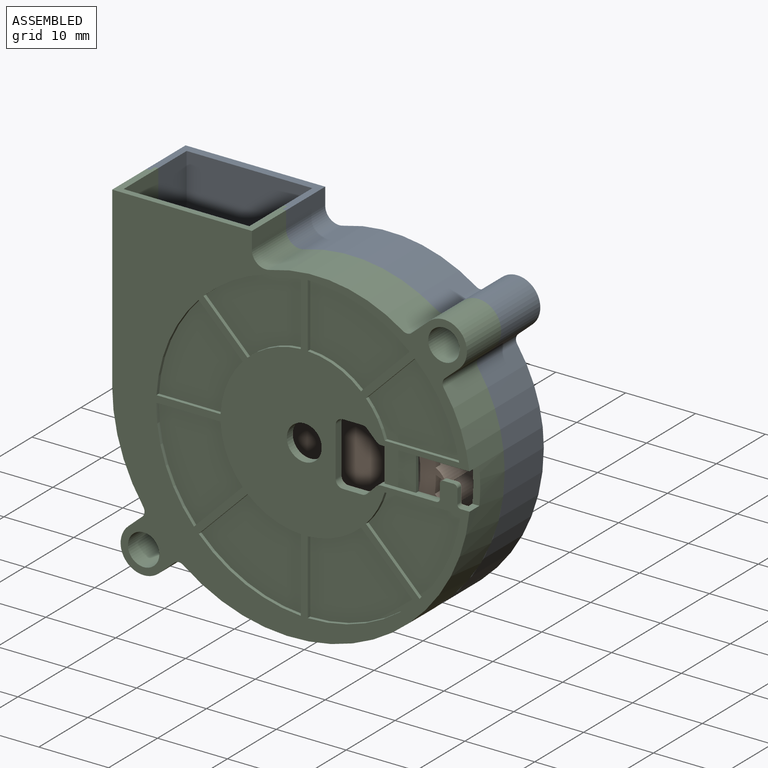
[diagram: assembled view]
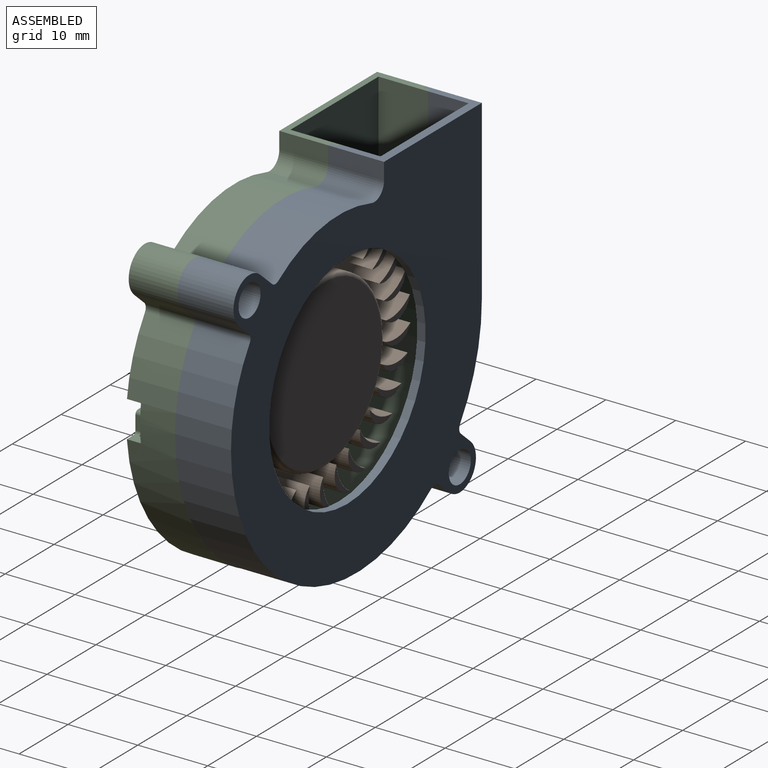
[diagram: assembled view, second angle]
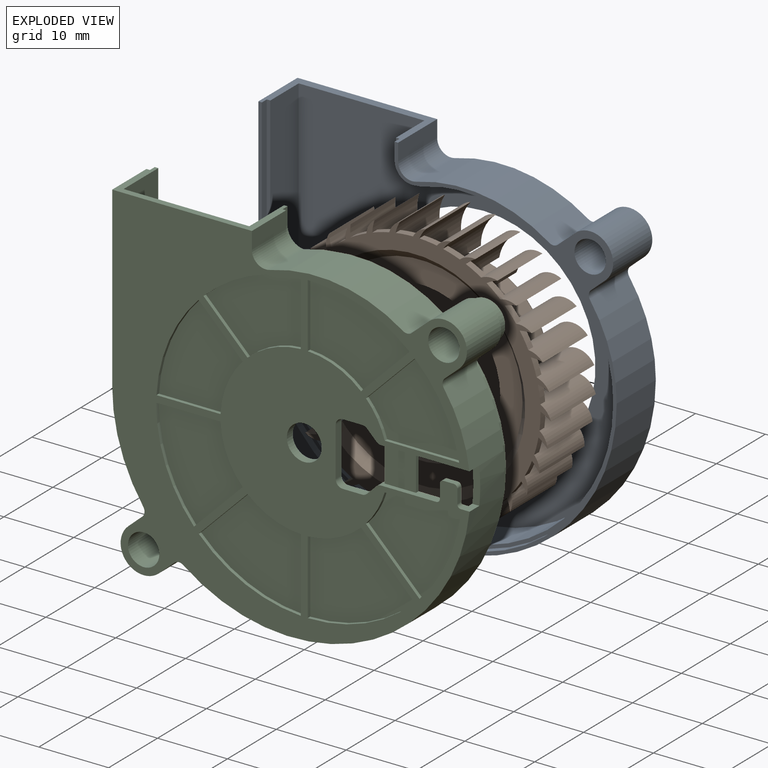
[diagram: exploded view]
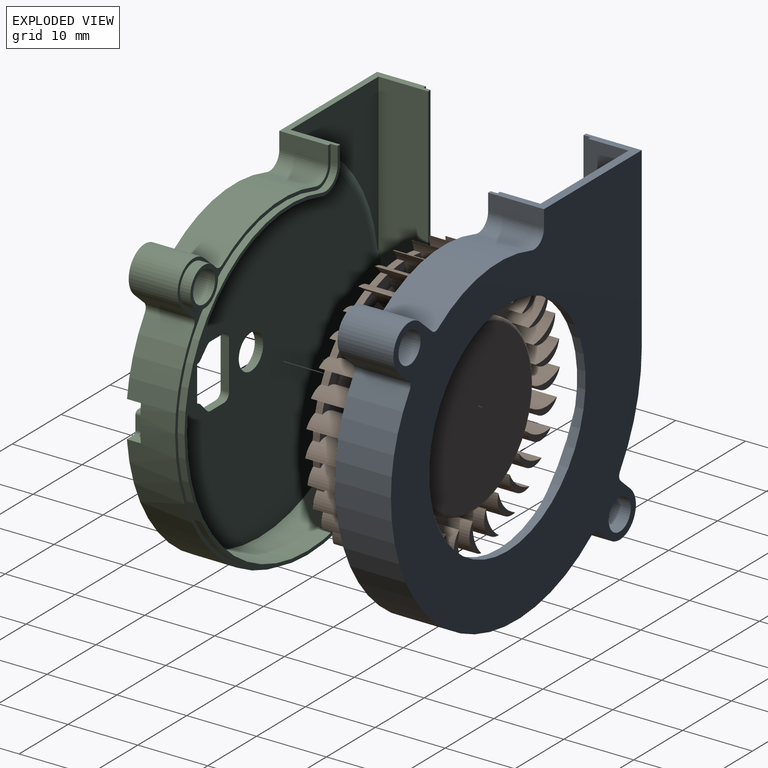
[diagram: exploded view, second angle]
ASSEMBLY  parts=3 mates=2
PART A: 35 faces, bbox 51.3x8x51.1 mm
  f0: cylinder r=16mm len=32mm, axis (0,1,0), area 120.6mm2, adj f1,f2
  f1: plane 51.3x51.07mm, normal (0,1,0), area 1370.5mm2, adj f0,f3,f4,f5,f6,f7,f8,f9
  f2: plane 50.07x49.3mm, normal (0,-1,0), area 1168mm2, adj f0,f22,f23,f24,f25,f28,f29
  f3: plane 25.4x8mm, normal (-1,0,0), area 203.2mm2, adj f1,f4,f28,f31
  f4: cylinder r=25.65mm len=14.47mm, axis (0,1,0), area 122.9mm2, adj f1,f3,f5,f31
  f5: cylinder r=1mm len=8mm, axis (0,1,0), area 11.6mm2, adj f1,f4,f6,f31
  f6: plane 8x1.98mm, normal (-0.66,0,0.75), area 21.1mm2, adj f1,f5,f7,f31
  f7: cylinder r=3.3mm len=8mm, axis (0,1,0), area 82.9mm2, adj f1,f6,f8,f31
  f8: plane 8x2.22mm, normal (0.66,0,-0.75), area 23.7mm2, adj f1,f7,f9,f31
  f9: cylinder r=1mm len=8mm, axis (0,1,0), area 11mm2, adj f1,f8,f10,f31
  f10: cylinder r=25.65mm len=41.13mm, axis (0,1,0), area 455.4mm2, adj f1,f9,f11,f31
  f11: cylinder r=22.07mm len=12.41mm, axis (0,1,0), area 105.5mm2, adj f1,f10,f12,f31
  f12: cylinder r=1mm len=8mm, axis (0,1,0), area 11.6mm2, adj f1,f11,f13,f31
  f13: plane 8x2.04mm, normal (0.66,0,-0.75), area 21.8mm2, adj f1,f12,f14,f31
  f14: cylinder r=3.3mm len=8mm, axis (0,1,0), area 82.9mm2, adj f1,f13,f15,f31
  f15: plane 8x2.44mm, normal (-0.66,0,0.75), area 26mm2, adj f1,f14,f16,f31
  f16: cylinder r=1mm len=8mm, axis (0,1,0), area 10.6mm2, adj f1,f15,f17,f31
  f17: cylinder r=22.07mm len=19.05mm, axis (0,1,0), area 159.4mm2, adj f1,f16,f18,f31
  f18: cylinder r=2mm len=8mm, axis (0,1,0), area 30mm2, adj f1,f17,f19,f31
  f19: plane 8x2.44mm, normal (1,0,0), area 19.6mm2, adj f1,f18,f28,f31
  f20: cylinder r=2.25mm len=8mm, axis (0,1,0), area 113.1mm2, adj f1,f31
  f21: cylinder r=2.25mm len=8mm, axis (0,1,0), area 113.1mm2, adj f1,f31
  f22: cylinder r=3mm len=5.8mm, axis (0,-1,0), area 32.6mm2, adj f2,f23,f29,f33
  f23: cylinder r=21.07mm len=27.4mm, axis (0,-1,0), area 229.2mm2, adj f2,f22,f24,f33
  f24: cylinder r=24.65mm len=49.3mm, axis (0,-1,0), area 449.3mm2, adj f2,f23,f25,f33
  f25: plane 25.4x5.8mm, normal (1,0,0), area 147.3mm2, adj f2,f24,f28,f33
  f26: cylinder r=2.5mm len=3.25mm, axis (0,-1,0), area 4.7mm2, adj f27,f30,f31,f33
  f27: plane 2.44x1mm, normal (-1,0,0), area 2.4mm2, adj f26,f28,f31,f33
  f28: plane 20x8mm, normal (0,0,1), area 36.6mm2, adj f1,f2,f3,f19,f25,f27,f29,f31
  f29: plane 5.8x2.44mm, normal (-1,0,0), area 14.2mm2, adj f2,f22,f28,f33
  f30: cylinder r=21.57mm len=28.05mm, axis (0,-1,0), area 40.5mm2, adj f26,f31,f33,f34
  f31: plane 51.3x51.07mm, normal (0,-1,0), area 126.8mm2, adj f3,f4,f5,f6,f7,f8,f9,f10
  f32: plane 25.4x1mm, normal (1,0,0), area 25.4mm2, adj f28,f31,f33,f34
  f33: plane 50.57x50.3mm, normal (0,-1,0), area 75.6mm2, adj f22,f23,f24,f25,f26,f27,f28,f29
  f34: cylinder r=25.15mm len=50.3mm, axis (0,-1,0), area 79mm2, adj f30,f31,f32,f33
PART B: 207 faces, bbox 39x10.5x38.9 mm
  f0: plane 23.5x23.5mm, normal (0,1,0), area 433.7mm2, adj f1
  f1: torus R=11.75mm, axis (0,1,0), area 59.6mm2, adj f0,f2
  f2: cylinder r=12.25mm len=24.5mm, axis (0,-1,0), area 577.3mm2, adj f1,f3
  f3: plane 29x29mm, normal (0,1,0), area 189.1mm2, adj f2,f6,f8,f11,f14,f17,f20,f23
  f4: plane 5.03x1.97mm, normal (0,1,0), area 3.4mm2, adj f103,f104
  f5: plane 2.83x2.05mm, normal (0,1,0), area 4.7mm2, adj f6,f104,f105,f106
  f6: cone r=14.5mm half-angle=45deg, axis (0,-1,0), area 5.3mm2, adj f3,f5,f104,f106
  f7: plane 4.77x2.5mm, normal (0,1,0), area 3.4mm2, adj f106,f107
  f8: cone r=14.5mm half-angle=45deg, axis (0,-1,0), area 5.3mm2, adj f3,f9,f107,f109
  f9: plane 3.14x2.37mm, normal (0,1,0), area 4.7mm2, adj f8,f107,f108,f109
  f10: plane 4.34x3.06mm, normal (0,1,0), area 3.4mm2, adj f109,f110
  f11: cone r=14.5mm half-angle=45deg, axis (0,-1,0), area 5.3mm2, adj f3,f12,f110,f112
  f12: plane 3.35x2.63mm, normal (0,1,0), area 4.7mm2, adj f11,f110,f111,f112
  f13: plane 3.83x3.61mm, normal (0,1,0), area 3.4mm2, adj f112,f113
  f14: cone r=14.5mm half-angle=45deg, axis (0,-1,0), area 5.3mm2, adj f3,f15,f113,f115
  f15: plane 3.44x2.79mm, normal (0,1,0), area 4.7mm2, adj f14,f113,f114,f115
  f16: plane 4.13x3.29mm, normal (0,1,0), area 3.4mm2, adj f115,f116
  f17: cone r=14.5mm half-angle=45deg, axis (0,-1,0), area 5.3mm2, adj f3,f18,f116,f118
  f18: plane 3.4x2.85mm, normal (0,1,0), area 4.7mm2, adj f17,f116,f117,f118
  f19: plane 4.61x2.74mm, normal (0,1,0), area 3.4mm2, adj f118,f119
  f20: cone r=14.5mm half-angle=45deg, axis (0,-1,0), area 5.3mm2, adj f3,f21,f119,f121
  f21: plane 3.23x2.81mm, normal (0,1,0), area 4.7mm2, adj f20,f119,f120,f121
  f22: plane 4.94x2.19mm, normal (0,1,0), area 3.4mm2, adj f121,f122
  f23: cone r=14.5mm half-angle=45deg, axis (0,-1,0), area 5.3mm2, adj f3,f24,f122,f124
  f24: plane 2.96x2.66mm, normal (0,1,0), area 4.7mm2, adj f23,f122,f123,f124
  f25: plane 5.09x1.66mm, normal (0,1,0), area 3.4mm2, adj f124,f125
  f26: cone r=14.5mm half-angle=45deg, axis (0,-1,0), area 5.3mm2, adj f3,f27,f125,f127
  f27: plane 2.57x2.48mm, normal (0,1,0), area 4.7mm2, adj f26,f125,f126,f127
  f28: plane 5.06x1.83mm, normal (0,1,0), area 3.4mm2, adj f127,f128
  f29: cone r=14.5mm half-angle=45deg, axis (0,-1,0), area 5.3mm2, adj f3,f30,f128,f130
  f30: plane 2.74x2.11mm, normal (0,1,0), area 4.7mm2, adj f29,f128,f129,f130
  f31: plane 4.85x2.37mm, normal (0,1,0), area 3.4mm2, adj f130,f131
  f32: cone r=14.5mm half-angle=45deg, axis (0,-1,0), area 5.3mm2, adj f3,f33,f131,f133
  f33: plane 3.08x2.29mm, normal (0,1,0), area 4.7mm2, adj f32,f131,f132,f133
  f34: plane 4.46x2.92mm, normal (0,1,0), area 3.4mm2, adj f133,f134
  f35: cone r=14.5mm half-angle=45deg, axis (0,-1,0), area 5.3mm2, adj f3,f36,f134,f136
  f36: plane 3.31x2.57mm, normal (0,1,0), area 4.7mm2, adj f35,f134,f135,f136
  f37: plane 3.96x3.47mm, normal (0,1,0), area 3.4mm2, adj f136,f137
  f38: cone r=14.5mm half-angle=45deg, axis (0,-1,0), area 5.3mm2, adj f3,f39,f137,f139
  f39: plane 3.43x2.76mm, normal (0,1,0), area 4.7mm2, adj f38,f137,f138,f139
  f40: plane 4.01x3.43mm, normal (0,1,0), area 3.4mm2, adj f139,f140
  f41: plane 3.42x2.84mm, normal (0,1,0), area 4.7mm2, adj f42,f140,f141,f142
  f42: cone r=14.5mm half-angle=45deg, axis (0,-1,0), area 5.3mm2, adj f3,f41,f140,f142
  f43: plane 4.5x2.87mm, normal (0,1,0), area 3.4mm2, adj f142,f143
  f44: plane 3.29x2.83mm, normal (0,1,0), area 4.7mm2, adj f45,f143,f144,f145
  f45: cone r=14.5mm half-angle=45deg, axis (0,-1,0), area 5.3mm2, adj f3,f44,f143,f145
  f46: plane 4.87x2.32mm, normal (0,1,0), area 3.4mm2, adj f145,f146
  f47: plane 3.04x2.71mm, normal (0,1,0), area 4.7mm2, adj f48,f146,f147,f148
  f48: cone r=14.5mm half-angle=45deg, axis (0,-1,0), area 5.3mm2, adj f3,f47,f146,f148
  f49: plane 5.07x1.79mm, normal (0,1,0), area 3.4mm2, adj f148,f149
  f50: plane 2.67x2.5mm, normal (0,1,0), area 4.7mm2, adj f51,f149,f150,f151
  f51: cone r=14.5mm half-angle=45deg, axis (0,-1,0), area 5.3mm2, adj f3,f50,f149,f151
  f52: plane 5.09x1.71mm, normal (0,1,0), area 3.4mm2, adj f151,f152
  f53: plane 2.67x2.22mm, normal (0,1,0), area 4.7mm2, adj f54,f152,f153,f154
  f54: cone r=14.5mm half-angle=45deg, axis (0,-1,0), area 5.3mm2, adj f3,f53,f152,f154
  f55: plane 4.92x2.23mm, normal (0,1,0), area 3.4mm2, adj f154,f155
  f56: plane 3x2.21mm, normal (0,1,0), area 4.7mm2, adj f57,f155,f156,f157
  f57: cone r=14.5mm half-angle=45deg, axis (0,-1,0), area 5.3mm2, adj f3,f56,f155,f157
  f58: plane 4.57x2.78mm, normal (0,1,0), area 3.4mm2, adj f157,f158
  f59: plane 3.26x2.51mm, normal (0,1,0), area 4.7mm2, adj f60,f158,f159,f160
  f60: cone r=14.5mm half-angle=45deg, axis (0,-1,0), area 5.3mm2, adj f3,f59,f158,f160
  f61: plane 4.09x3.34mm, normal (0,1,0), area 3.4mm2, adj f160,f161
  f62: plane 3.41x2.72mm, normal (0,1,0), area 4.7mm2, adj f63,f161,f162,f163
  f63: cone r=14.5mm half-angle=45deg, axis (0,-1,0), area 5.3mm2, adj f3,f62,f161,f163
  f64: plane 3.88x3.56mm, normal (0,1,0), area 3.4mm2, adj f163,f164
  f65: plane 3.43x2.83mm, normal (0,1,0), area 4.7mm2, adj f66,f164,f165,f166
  f66: cone r=14.5mm half-angle=45deg, axis (0,-1,0), area 5.3mm2, adj f3,f65,f164,f166
  f67: plane 4.38x3.01mm, normal (0,1,0), area 3.4mm2, adj f166,f167
  f68: plane 3.33x2.84mm, normal (0,1,0), area 4.7mm2, adj f69,f167,f168,f169
  f69: cone r=14.5mm half-angle=45deg, axis (0,-1,0), area 5.3mm2, adj f3,f68,f167,f169
  f70: plane 4.8x2.46mm, normal (0,1,0), area 3.4mm2, adj f169,f170
  f71: plane 3.11x2.75mm, normal (0,1,0), area 4.7mm2, adj f72,f170,f171,f172
  f72: cone r=14.5mm half-angle=45deg, axis (0,-1,0), area 5.3mm2, adj f3,f71,f170,f172
  f73: plane 5.04x1.92mm, normal (0,1,0), area 3.4mm2, adj f172,f173
  f74: plane 2.77x2.56mm, normal (0,1,0), area 4.7mm2, adj f75,f173,f174,f175
  f75: cone r=14.5mm half-angle=45deg, axis (0,-1,0), area 5.3mm2, adj f3,f74,f173,f175
  f76: plane 5.1x1.58mm, normal (0,1,0), area 3.4mm2, adj f175,f176
  f77: plane 2.6x2.34mm, normal (0,1,0), area 4.7mm2, adj f78,f176,f177,f178
  f78: cone r=14.5mm half-angle=45deg, axis (0,-1,0), area 5.3mm2, adj f3,f77,f176,f178
  f79: plane 4.98x2.1mm, normal (0,1,0), area 3.4mm2, adj f178,f179
  f80: plane 2.92x2.12mm, normal (0,1,0), area 4.7mm2, adj f81,f179,f180,f181
  f81: cone r=14.5mm half-angle=45deg, axis (0,-1,0), area 5.3mm2, adj f3,f80,f179,f181
  f82: plane 4.68x2.64mm, normal (0,1,0), area 3.4mm2, adj f181,f182
  f83: plane 3.21x2.44mm, normal (0,1,0), area 4.7mm2, adj f84,f182,f183,f184
  f84: cone r=14.5mm half-angle=45deg, axis (0,-1,0), area 5.3mm2, adj f3,f83,f182,f184
  f85: plane 4.22x3.2mm, normal (0,1,0), area 3.4mm2, adj f184,f185
  f86: plane 3.38x2.68mm, normal (0,1,0), area 4.7mm2, adj f87,f185,f186,f187
  f87: cone r=14.5mm half-angle=45deg, axis (0,-1,0), area 5.3mm2, adj f3,f86,f185,f187
  f88: plane 3.74x3.7mm, normal (0,1,0), area 3.4mm2, adj f187,f188
  f89: plane 3.44x2.81mm, normal (0,1,0), area 4.7mm2, adj f90,f188,f189,f190
  f90: cone r=14.5mm half-angle=45deg, axis (0,-1,0), area 5.3mm2, adj f3,f89,f188,f190
  f91: plane 4.26x3.15mm, normal (0,1,0), area 3.4mm2, adj f190,f191
  f92: plane 3.37x2.85mm, normal (0,1,0), area 4.7mm2, adj f93,f191,f192,f193
  f93: cone r=14.5mm half-angle=45deg, axis (0,-1,0), area 5.3mm2, adj f3,f92,f191,f193
  f94: plane 4.71x2.6mm, normal (0,1,0), area 3.4mm2, adj f193,f194
  f95: plane 3.17x2.78mm, normal (0,1,0), area 4.7mm2, adj f96,f194,f195,f196
  f96: cone r=14.5mm half-angle=45deg, axis (0,-1,0), area 5.3mm2, adj f3,f95,f194,f196
  f97: plane 5x2.05mm, normal (0,1,0), area 3.4mm2, adj f196,f197
  f98: plane 2.87x2.61mm, normal (0,1,0), area 4.7mm2, adj f99,f197,f198,f199
  f99: cone r=14.5mm half-angle=45deg, axis (0,-1,0), area 5.3mm2, adj f3,f98,f197,f199
  f100: plane 5.1x1.54mm, normal (0,1,0), area 3.4mm2, adj f199,f200
  f101: cone r=14.5mm half-angle=45deg, axis (0,-1,0), area 5.3mm2, adj f3,f102,f103,f200
  f102: plane 2.53x2.46mm, normal (0,1,0), area 4.7mm2, adj f101,f103,f200,f201
  f103: cylinder r=2.92mm len=9.2mm, axis (0,-1,0), area 51.9mm2, adj f4,f101,f102,f104,f201,f202
  f104: cylinder r=5.73mm len=9.2mm, axis (0,-1,0), area 44mm2, adj f4,f5,f6,f103,f105,f202
  f105: cylinder r=18mm len=2.51mm, axis (0,-1,0), area 2.5mm2, adj f5,f104,f106,f202
  f106: cylinder r=2.92mm len=9.2mm, axis (0,-1,0), area 51.9mm2, adj f5,f6,f7,f105,f107,f202
  f107: cylinder r=5.73mm len=9.2mm, axis (0,-1,0), area 44mm2, adj f7,f8,f9,f106,f108,f202
  f108: cylinder r=18mm len=2.45mm, axis (0,-1,0), area 2.5mm2, adj f9,f107,f109,f202
  f109: cylinder r=2.92mm len=9.2mm, axis (0,-1,0), area 51.9mm2, adj f8,f9,f10,f108,f110,f202
  f110: cylinder r=5.73mm len=9.2mm, axis (0,-1,0), area 44mm2, adj f10,f11,f12,f109,f111,f202
  f111: cylinder r=18mm len=2.3mm, axis (0,-1,0), area 2.5mm2, adj f12,f110,f112,f202
  f112: cylinder r=2.92mm len=9.2mm, axis (0,-1,0), area 51.9mm2, adj f11,f12,f13,f111,f113,f202
  f113: cylinder r=5.73mm len=9.2mm, axis (0,-1,0), area 44mm2, adj f13,f14,f15,f112,f114,f202
  f114: cylinder r=18mm len=2.08mm, axis (0,-1,0), area 2.5mm2, adj f15,f113,f115,f202
  f115: cylinder r=2.92mm len=9.2mm, axis (0,-1,0), area 51.9mm2, adj f14,f15,f16,f114,f116,f202
  f116: cylinder r=5.73mm len=9.2mm, axis (0,-1,0), area 44mm2, adj f16,f17,f18,f115,f117,f202
  f117: cylinder r=18mm len=1.78mm, axis (0,-1,0), area 2.5mm2, adj f18,f116,f118,f202
  f118: cylinder r=2.92mm len=9.2mm, axis (0,-1,0), area 51.9mm2, adj f17,f18,f19,f117,f119,f202
  f119: cylinder r=5.73mm len=9.2mm, axis (0,-1,0), area 44mm2, adj f19,f20,f21,f118,f120,f202
  f120: cylinder r=18mm len=2.08mm, axis (0,-1,0), area 2.5mm2, adj f21,f119,f121,f202
  f121: cylinder r=2.92mm len=9.2mm, axis (0,-1,0), area 51.9mm2, adj f20,f21,f22,f120,f122,f202
  f122: cylinder r=5.73mm len=9.2mm, axis (0,-1,0), area 44mm2, adj f22,f23,f24,f121,f123,f202
  f123: cylinder r=18mm len=2.31mm, axis (0,-1,0), area 2.5mm2, adj f24,f122,f124,f202
  f124: cylinder r=2.92mm len=9.2mm, axis (0,-1,0), area 51.9mm2, adj f23,f24,f25,f123,f125,f202
  f125: cylinder r=5.73mm len=9.2mm, axis (0,-1,0), area 44mm2, adj f25,f26,f27,f124,f126,f202
  f126: cylinder r=18mm len=2.45mm, axis (0,-1,0), area 2.5mm2, adj f27,f125,f127,f202
  f127: cylinder r=2.92mm len=9.2mm, axis (0,-1,0), area 51.9mm2, adj f26,f27,f28,f126,f128,f202
  f128: cylinder r=5.73mm len=9.2mm, axis (0,-1,0), area 44mm2, adj f28,f29,f30,f127,f129,f202
  f129: cylinder r=18mm len=2.51mm, axis (0,-1,0), area 2.5mm2, adj f30,f128,f130,f202
  f130: cylinder r=2.92mm len=9.2mm, axis (0,-1,0), area 51.9mm2, adj f29,f30,f31,f129,f131,f202
  f131: cylinder r=5.73mm len=9.2mm, axis (0,-1,0), area 44mm2, adj f31,f32,f33,f130,f132,f202
  f132: cylinder r=18mm len=2.47mm, axis (0,-1,0), area 2.5mm2, adj f33,f131,f133,f202
  f133: cylinder r=2.92mm len=9.2mm, axis (0,-1,0), area 51.9mm2, adj f32,f33,f34,f132,f134,f202
  f134: cylinder r=5.73mm len=9.2mm, axis (0,-1,0), area 44mm2, adj f34,f35,f36,f133,f135,f202
  f135: cylinder r=18mm len=2.35mm, axis (0,-1,0), area 2.5mm2, adj f36,f134,f136,f202
  f136: cylinder r=2.92mm len=9.2mm, axis (0,-1,0), area 51.9mm2, adj f35,f36,f37,f135,f137,f202
  f137: cylinder r=5.73mm len=9.2mm, axis (0,-1,0), area 44mm2, adj f37,f38,f39,f136,f138,f202
  f138: cylinder r=18mm len=2.14mm, axis (0,-1,0), area 2.5mm2, adj f39,f137,f139,f202
  f139: cylinder r=2.92mm len=9.2mm, axis (0,-1,0), area 51.9mm2, adj f38,f39,f40,f138,f140,f202
  f140: cylinder r=5.73mm len=9.2mm, axis (0,-1,0), area 44mm2, adj f40,f41,f42,f139,f141,f202
  f141: cylinder r=18mm len=1.85mm, axis (0,-1,0), area 2.5mm2, adj f41,f140,f142,f202
  f142: cylinder r=2.92mm len=9.2mm, axis (0,-1,0), area 51.9mm2, adj f41,f42,f43,f141,f143,f202
  f143: cylinder r=5.73mm len=9.2mm, axis (0,-1,0), area 44mm2, adj f43,f44,f45,f142,f144,f202
  f144: cylinder r=18mm len=2.01mm, axis (0,-1,0), area 2.5mm2, adj f44,f143,f145,f202
  f145: cylinder r=2.92mm len=9.2mm, axis (0,-1,0), area 51.9mm2, adj f44,f45,f46,f144,f146,f202
  f146: cylinder r=5.73mm len=9.2mm, axis (0,-1,0), area 44mm2, adj f46,f47,f48,f145,f147,f202
  f147: cylinder r=18mm len=2.26mm, axis (0,-1,0), area 2.5mm2, adj f47,f146,f148,f202
  f148: cylinder r=2.92mm len=9.2mm, axis (0,-1,0), area 51.9mm2, adj f47,f48,f49,f147,f149,f202
  f149: cylinder r=5.73mm len=9.2mm, axis (0,-1,0), area 44mm2, adj f49,f50,f51,f148,f150,f202
  f150: cylinder r=18mm len=2.42mm, axis (0,-1,0), area 2.5mm2, adj f50,f149,f151,f202
  f151: cylinder r=2.92mm len=9.2mm, axis (0,-1,0), area 51.9mm2, adj f50,f51,f52,f150,f152,f202
  f152: cylinder r=5.73mm len=9.2mm, axis (0,-1,0), area 44mm2, adj f52,f53,f54,f151,f153,f202
  f153: cylinder r=18mm len=2.5mm, axis (0,-1,0), area 2.5mm2, adj f53,f152,f154,f202
  f154: cylinder r=2.92mm len=9.2mm, axis (0,-1,0), area 51.9mm2, adj f53,f54,f55,f153,f155,f202
  f155: cylinder r=5.73mm len=9.2mm, axis (0,-1,0), area 44mm2, adj f55,f56,f57,f154,f156,f202
  f156: cylinder r=18mm len=2.49mm, axis (0,-1,0), area 2.5mm2, adj f56,f155,f157,f202
  f157: cylinder r=2.92mm len=9.2mm, axis (0,-1,0), area 51.9mm2, adj f56,f57,f58,f156,f158,f202
  f158: cylinder r=5.73mm len=9.2mm, axis (0,-1,0), area 44mm2, adj f58,f59,f60,f157,f159,f202
  f159: cylinder r=18mm len=2.39mm, axis (0,-1,0), area 2.5mm2, adj f59,f158,f160,f202
  f160: cylinder r=2.92mm len=9.2mm, axis (0,-1,0), area 51.9mm2, adj f59,f60,f61,f159,f161,f202
  f161: cylinder r=5.73mm len=9.2mm, axis (0,-1,0), area 44mm2, adj f61,f62,f63,f160,f162,f202
  f162: cylinder r=18mm len=2.2mm, axis (0,-1,0), area 2.5mm2, adj f62,f161,f163,f202
  f163: cylinder r=2.92mm len=9.2mm, axis (0,-1,0), area 51.9mm2, adj f62,f63,f64,f162,f164,f202
  f164: cylinder r=5.73mm len=9.2mm, axis (0,-1,0), area 44mm2, adj f64,f65,f66,f163,f165,f202
  f165: cylinder r=18mm len=1.93mm, axis (0,-1,0), area 2.5mm2, adj f65,f164,f166,f202
  f166: cylinder r=2.92mm len=9.2mm, axis (0,-1,0), area 51.9mm2, adj f65,f66,f67,f165,f167,f202
  f167: cylinder r=5.73mm len=9.2mm, axis (0,-1,0), area 44mm2, adj f67,f68,f69,f166,f168,f202
  f168: cylinder r=18mm len=1.94mm, axis (0,-1,0), area 2.5mm2, adj f68,f167,f169,f202
  f169: cylinder r=2.92mm len=9.2mm, axis (0,-1,0), area 51.9mm2, adj f68,f69,f70,f168,f170,f202
  f170: cylinder r=5.73mm len=9.2mm, axis (0,-1,0), area 44mm2, adj f70,f71,f72,f169,f171,f202
  f171: cylinder r=18mm len=2.2mm, axis (0,-1,0), area 2.5mm2, adj f71,f170,f172,f202
  f172: cylinder r=2.92mm len=9.2mm, axis (0,-1,0), area 51.9mm2, adj f71,f72,f73,f171,f173,f202
  f173: cylinder r=5.73mm len=9.2mm, axis (0,-1,0), area 44mm2, adj f73,f74,f75,f172,f174,f202
  f174: cylinder r=18mm len=2.39mm, axis (0,-1,0), area 2.5mm2, adj f74,f173,f175,f202
  f175: cylinder r=2.92mm len=9.2mm, axis (0,-1,0), area 51.9mm2, adj f74,f75,f76,f174,f176,f202
  f176: cylinder r=5.73mm len=9.2mm, axis (0,-1,0), area 44mm2, adj f76,f77,f78,f175,f177,f202
  f177: cylinder r=18mm len=2.49mm, axis (0,-1,0), area 2.5mm2, adj f77,f176,f178,f202
  f178: cylinder r=2.92mm len=9.2mm, axis (0,-1,0), area 51.9mm2, adj f77,f78,f79,f177,f179,f202
  f179: cylinder r=5.73mm len=9.2mm, axis (0,-1,0), area 44mm2, adj f79,f80,f81,f178,f180,f202
  f180: cylinder r=18mm len=2.5mm, axis (0,-1,0), area 2.5mm2, adj f80,f179,f181,f202
  f181: cylinder r=2.92mm len=9.2mm, axis (0,-1,0), area 51.9mm2, adj f80,f81,f82,f180,f182,f202
  f182: cylinder r=5.73mm len=9.2mm, axis (0,-1,0), area 44mm2, adj f82,f83,f84,f181,f183,f202
  f183: cylinder r=18mm len=2.42mm, axis (0,-1,0), area 2.5mm2, adj f83,f182,f184,f202
  f184: cylinder r=2.92mm len=9.2mm, axis (0,-1,0), area 51.9mm2, adj f83,f84,f85,f183,f185,f202
  f185: cylinder r=5.73mm len=9.2mm, axis (0,-1,0), area 44mm2, adj f85,f86,f87,f184,f186,f202
  f186: cylinder r=18mm len=2.25mm, axis (0,-1,0), area 2.5mm2, adj f86,f185,f187,f202
  f187: cylinder r=2.92mm len=9.2mm, axis (0,-1,0), area 51.9mm2, adj f86,f87,f88,f186,f188,f202
  f188: cylinder r=5.73mm len=9.2mm, axis (0,-1,0), area 44mm2, adj f88,f89,f90,f187,f189,f202
  f189: cylinder r=18mm len=2.01mm, axis (0,-1,0), area 2.5mm2, adj f89,f188,f190,f202
  f190: cylinder r=2.92mm len=9.2mm, axis (0,-1,0), area 51.9mm2, adj f89,f90,f91,f189,f191,f202
  f191: cylinder r=5.73mm len=9.2mm, axis (0,-1,0), area 44mm2, adj f91,f92,f93,f190,f192,f202
  f192: cylinder r=18mm len=1.86mm, axis (0,-1,0), area 2.5mm2, adj f92,f191,f193,f202
  f193: cylinder r=2.92mm len=9.2mm, axis (0,-1,0), area 51.9mm2, adj f92,f93,f94,f192,f194,f202
  f194: cylinder r=5.73mm len=9.2mm, axis (0,-1,0), area 44mm2, adj f94,f95,f96,f193,f195,f202
  f195: cylinder r=18mm len=2.14mm, axis (0,-1,0), area 2.5mm2, adj f95,f194,f196,f202
  f196: cylinder r=2.92mm len=9.2mm, axis (0,-1,0), area 51.9mm2, adj f95,f96,f97,f195,f197,f202
  f197: cylinder r=5.73mm len=9.2mm, axis (0,-1,0), area 44mm2, adj f97,f98,f99,f196,f198,f202
  f198: cylinder r=18mm len=2.35mm, axis (0,-1,0), area 2.5mm2, adj f98,f197,f199,f202
  f199: cylinder r=2.92mm len=9.2mm, axis (0,-1,0), area 51.9mm2, adj f98,f99,f100,f198,f200,f202
  f200: cylinder r=5.73mm len=9.2mm, axis (0,-1,0), area 44mm2, adj f100,f101,f102,f199,f201,f202
  f201: cylinder r=18mm len=2.47mm, axis (0,-1,0), area 2.5mm2, adj f102,f103,f200,f202
  f202: plane 38.96x38.91mm, normal (0,-1,0), area 265.7mm2, adj f103,f104,f105,f106,f107,f108,f109,f110
  f203: cone r=14.6mm half-angle=45deg, axis (0,-1,0), area 162.1mm2, adj f202,f205
  f204: plane 22.8x22.8mm, normal (0,-1,0), area 408.3mm2, adj f206
  f205: plane 29.2x29.2mm, normal (0,-1,0), area 261.4mm2, adj f203,f206
  f206: cylinder r=11.4mm len=22.8mm, axis (0,-1,0), area 608.8mm2, adj f204,f205
PART C: 107 faces, bbox 52.9x8.5x51.4 mm
  f0: plane 14.61x13.7mm, normal (0,-1,0), area 127.2mm2, adj f17,f18,f19,f20
  f1: plane 13.57x12.45mm, normal (0,-1,0), area 105.4mm2, adj f21,f22,f23,f24
  f2: plane 15.3x13.73mm, normal (0,-1,0), area 135.9mm2, adj f25,f26,f27,f28
  f3: plane 14.58x12.36mm, normal (0,-1,0), area 115.4mm2, adj f29,f30,f31,f32
  f4: plane 13.36x11.76mm, normal (0,-1,0), area 97mm2, adj f33,f34,f35,f36
  f5: plane 13.93x12.33mm, normal (0,-1,0), area 107.6mm2, adj f37,f38,f39,f40
  f6: plane 13.93x12.33mm, normal (0,-1,0), area 107.6mm2, adj f41,f42,f43,f44
  f7: plane 14.58x12.36mm, normal (0,-1,0), area 115.4mm2, adj f45,f46,f47,f48
  f8: plane 5.65x5.65mm, normal (0,1,0), area 9.2mm2, adj f16,f62
  f9: plane 5.65x5.65mm, normal (0,1,0), area 9.2mm2, adj f15,f63
  f10: plane 1.5x0.8mm, normal (0,0,1), area 1.2mm2, adj f11,f14,f66,f70
  f11: cylinder r=0.5mm len=0.8mm, axis (0,1,0), area 0.6mm2, adj f10,f12,f66,f70
  f12: plane 2x0.8mm, normal (-1,0,0), area 1.6mm2, adj f11,f66,f67,f70
  f13: plane 2x0.8mm, normal (1,0,0), area 1.6mm2, adj f14,f65,f66,f70
  f14: cylinder r=0.5mm len=0.8mm, axis (0,-1,0), area 0.6mm2, adj f10,f13,f66,f70
  f15: cylinder r=2.25mm len=8.5mm, axis (0,-1,0), area 120.2mm2, adj f9,f70
  f16: cylinder r=2.25mm len=8.5mm, axis (0,-1,0), area 120.2mm2, adj f8,f70
  f17: cylinder r=21.88mm len=14.61mm, axis (0,-1,0), area 8.2mm2, adj f0,f18,f20,f70
  f18: plane 6.99x6.99mm, normal (0.71,0,-0.71), area 4.9mm2, adj f0,f17,f19,f70
  f19: cylinder r=12mm len=7.62mm, axis (0,-1,0), area 4.2mm2, adj f0,f18,f20,f70
  f20: plane 10.54x0.5mm, normal (-1,0,0), area 5.3mm2, adj f0,f17,f19,f70
  f21: cylinder r=21.88mm len=12.45mm, axis (0,-1,0), area 7mm2, adj f1,f22,f24,f70
  f22: plane 7.67x7.67mm, normal (0.71,0,0.71), area 5.4mm2, adj f1,f21,f23,f70
  f23: cylinder r=12mm len=4.77mm, axis (0,-1,0), area 2.8mm2, adj f1,f22,f24,f70
  f24: plane 10.88x0.5mm, normal (0,0,-1), area 5.4mm2, adj f1,f21,f23,f70
  f25: plane 10.57x0.5mm, normal (1,0,0), area 5.3mm2, adj f2,f26,f28,f70
  f26: cylinder r=12mm len=7.62mm, axis (0,-1,0), area 4.2mm2, adj f2,f25,f27,f70
  f27: plane 7.67x7.67mm, normal (-0.71,0,-0.71), area 5.4mm2, adj f2,f26,f28,f70
  f28: cylinder r=21.88mm len=15.3mm, axis (0,-1,0), area 8.4mm2, adj f2,f25,f27,f70
  f29: plane 6.96x6.96mm, normal (-0.71,0,0.71), area 4.9mm2, adj f3,f30,f32,f70
  f30: cylinder r=12mm len=7.62mm, axis (0,-1,0), area 4.2mm2, adj f3,f29,f31,f70
  f31: plane 9.2x0.5mm, normal (1,0,0), area 4.6mm2, adj f3,f30,f32,f70
  f32: cylinder r=21.88mm len=14.58mm, axis (0,-1,0), area 7.9mm2, adj f3,f29,f31,f70
  f33: plane 10.66x0.5mm, normal (0,0,1), area 5.3mm2, adj f4,f34,f36,f70
  f34: cylinder r=12mm len=4.77mm, axis (0,-1,0), area 2.8mm2, adj f4,f33,f35,f70
  f35: plane 6.99x6.99mm, normal (0.71,0,-0.71), area 4.9mm2, adj f4,f34,f36,f70
  f36: cylinder r=21.88mm len=11.76mm, axis (0,-1,0), area 6.8mm2, adj f4,f33,f35,f70
  f37: plane 6.3x6.3mm, normal (-0.71,0,-0.71), area 4.5mm2, adj f5,f38,f40,f70
  f38: cylinder r=12mm len=7.62mm, axis (0,-1,0), area 4.2mm2, adj f5,f37,f39,f70
  f39: plane 9.17x0.5mm, normal (0,0,1), area 4.6mm2, adj f5,f38,f40,f70
  f40: cylinder r=21.88mm len=13.93mm, axis (0,-1,0), area 7.7mm2, adj f5,f37,f39,f70
  f41: cylinder r=21.88mm len=13.93mm, axis (0,-1,0), area 7.7mm2, adj f6,f42,f44,f70
  f42: plane 9.17x0.5mm, normal (-1,0,0), area 4.6mm2, adj f6,f41,f43,f70
  f43: cylinder r=12mm len=7.62mm, axis (0,-1,0), area 4.2mm2, adj f6,f42,f44,f70
  f44: plane 6.3x6.3mm, normal (0.71,0,0.71), area 4.5mm2, adj f6,f41,f43,f70
  f45: plane 9.2x0.5mm, normal (0,0,-1), area 4.6mm2, adj f7,f46,f48,f70
  f46: cylinder r=12mm len=7.62mm, axis (0,-1,0), area 4.2mm2, adj f7,f45,f47,f70
  f47: plane 6.96x6.96mm, normal (-0.71,0,0.71), area 4.9mm2, adj f7,f46,f48,f70
  f48: cylinder r=21.88mm len=14.58mm, axis (0,-1,0), area 7.9mm2, adj f7,f45,f47,f70
  f49: cylinder r=2mm len=7mm, axis (0,-1,0), area 26.3mm2, adj f50,f69,f70,f72
  f50: cylinder r=22.07mm len=19.05mm, axis (0,-1,0), area 139.5mm2, adj f49,f51,f70,f72
  f51: cylinder r=1mm len=7mm, axis (0,-1,0), area 9.3mm2, adj f50,f52,f70,f72
  f52: plane 7x2.44mm, normal (-0.66,0,0.75), area 22.8mm2, adj f51,f53,f70,f72
  f53: cylinder r=3.3mm len=7mm, axis (0,-1,0), area 72.6mm2, adj f52,f54,f70,f72
  f54: plane 7x2.04mm, normal (0.66,0,-0.75), area 19.1mm2, adj f53,f55,f70,f72
  f55: cylinder r=1mm len=7mm, axis (0,-1,0), area 10.1mm2, adj f54,f68,f70,f72
  f56: cylinder r=1mm len=7mm, axis (0,-1,0), area 9.6mm2, adj f57,f64,f70,f72
  f57: plane 7x2.22mm, normal (0.66,0,-0.75), area 20.7mm2, adj f56,f58,f70,f72
  f58: cylinder r=3.3mm len=7mm, axis (0,-1,0), area 72.6mm2, adj f57,f59,f70,f72
  f59: plane 7x1.98mm, normal (-0.66,0,0.75), area 18.5mm2, adj f58,f60,f70,f72
  f60: cylinder r=1mm len=7mm, axis (0,-1,0), area 10.1mm2, adj f59,f61,f70,f72
  f61: cylinder r=25.65mm len=14.47mm, axis (0,-1,0), area 107.6mm2, adj f60,f70,f71,f72
  f62: cylinder r=2.82mm len=5.65mm, axis (0,-1,0), area 26.6mm2, adj f8,f72
  f63: cylinder r=2.82mm len=5.65mm, axis (0,-1,0), area 26.6mm2, adj f9,f72
  f64: cylinder r=25.65mm len=41.13mm, axis (0,-1,0), area 393.3mm2, adj f56,f68,f70,f72,f78,f80
  f65: cylinder r=0.5mm len=0.8mm, axis (0,-1,0), area 0.6mm2, adj f13,f66,f70,f80
  f66: plane 3.5x3mm, normal (0,1,0), area 7.5mm2, adj f10,f11,f12,f13,f14,f65,f67,f80
  f67: cylinder r=0.5mm len=0.8mm, axis (0,1,0), area 0.6mm2, adj f12,f66,f70,f80
  f68: cylinder r=22.07mm len=12.41mm, axis (0,-1,0), area 87.1mm2, adj f55,f64,f70,f72,f78,f92
  f69: plane 7x2.44mm, normal (1,0,0), area 17.1mm2, adj f49,f70,f72,f96
  f70: plane 51.17x51.07mm, normal (0,-1,0), area 1131.7mm2, adj f10,f11,f12,f13,f14,f15,f16,f17
  f71: plane 25.4x7mm, normal (-1,0,0), area 177.8mm2, adj f61,f70,f72,f96
  f72: plane 51.3x51.07mm, normal (0,1,0), area 108.5mm2, adj f49,f50,f51,f52,f53,f54,f55,f56
  f73: cylinder r=25.15mm len=50.3mm, axis (0,1,0), area 79mm2, adj f72,f74,f77,f97
  f74: cylinder r=21.57mm len=28.05mm, axis (0,1,0), area 40.5mm2, adj f72,f73,f75,f97
  f75: cylinder r=2.5mm len=3.25mm, axis (0,1,0), area 4.7mm2, adj f72,f74,f76,f97
  f76: plane 2.44x1mm, normal (1,0,0), area 2.4mm2, adj f72,f75,f96,f97
  f77: plane 25.4x1mm, normal (-1,0,0), area 25.4mm2, adj f72,f73,f96,f97
  f78: plane 5.2x1.16mm, normal (0,-1,0), area 5.2mm2, adj f64,f68,f80,f92,f93,f98
  f79: plane 7.1x2.44mm, normal (-1,0,0), area 17.4mm2, adj f94,f96,f97,f99
  f80: plane 12.66x2mm, normal (0,0,1), area 10.9mm2, adj f64,f65,f66,f67,f70,f78,f81,f98
  f81: cylinder r=1mm len=1.2mm, axis (0,-1,0), area 0.9mm2, adj f70,f80,f82,f101,f106
  f82: plane 1.31x1.31mm, normal (-0.71,0,0.71), area 2.2mm2, adj f70,f81,f83,f101
  f83: cylinder r=1mm len=1.2mm, axis (0,1,0), area 0.9mm2, adj f70,f82,f84,f101
  f84: plane 2.79x1.2mm, normal (0,0,1), area 3.3mm2, adj f70,f83,f85,f101
  f85: cylinder r=1mm len=1.2mm, axis (0,1,0), area 1.9mm2, adj f70,f84,f86,f101
  f86: plane 7x1.2mm, normal (1,0,0), area 8.4mm2, adj f70,f85,f87,f101
  f87: cylinder r=1mm len=1.2mm, axis (0,1,0), area 1.9mm2, adj f70,f86,f88,f101
  f88: plane 2.79x1.2mm, normal (0,0,-1), area 3.3mm2, adj f70,f87,f89,f101
  f89: cylinder r=1mm len=1.2mm, axis (0,1,0), area 0.9mm2, adj f70,f88,f90,f101
  f90: plane 1.31x1.31mm, normal (-0.71,0,-0.71), area 2.2mm2, adj f70,f89,f91,f101
  f91: cylinder r=1mm len=1.2mm, axis (0,-1,0), area 0.9mm2, adj f70,f90,f92,f101,f106
  f92: plane 12.63x2mm, normal (0,0,-1), area 13.7mm2, adj f68,f70,f78,f91,f93,f101,f104,f105
  f93: cylinder r=21.07mm len=27.4mm, axis (0,1,0), area 266.7mm2, adj f78,f92,f94,f97,f98,f101
  f94: cylinder r=3mm len=7.1mm, axis (0,1,0), area 38.5mm2, adj f79,f93,f97,f100,f101
  f95: cylinder r=2.5mm len=5mm, axis (0,-1,0), area 18.8mm2, adj f70,f101
  f96: plane 20x8mm, normal (0,0,1), area 31.2mm2, adj f69,f70,f71,f72,f76,f77,f79,f97
  f97: plane 50.57x50.3mm, normal (0,1,0), area 75.6mm2, adj f73,f74,f75,f76,f77,f79,f93,f94
  f98: cylinder r=24.65mm len=49.3mm, axis (0,1,0), area 524.7mm2, adj f78,f80,f93,f97,f101,f102
  f99: plane 22.44x18mm, normal (0,1,0), area 150.3mm2, adj f79,f96,f100,f102,f103
  f100: torus R=22.35mm, axis (0,1,0), area 37.3mm2, adj f94,f99,f101,f103
  f101: plane 49.16x46.35mm, normal (0,1,0), area 1674.1mm2, adj f80,f81,f82,f83,f84,f85,f86,f87
  f102: plane 25.4x7.1mm, normal (1,0,0), area 179.6mm2, adj f96,f97,f98,f99,f101,f103
  f103: torus R=1.41mm, axis (0,-1,0), area 1.6mm2, adj f99,f100,f101,f102
  f104: plane 5.2x0.5mm, normal (1,0,0), area 2.6mm2, adj f80,f92,f101,f105
  f105: plane 5.2x4.5mm, normal (0,-1,0), area 23.4mm2, adj f80,f92,f104,f106
  f106: plane 5.2x0.5mm, normal (-1,0,0), area 2.6mm2, adj f81,f91,f101,f105
PLACE A t=(0,15,0)mm
PLACE B rot(axis=(0,1,0),21deg) t=(0,1.2,0)mm
PLACE C at identity fixed
MATE revolute B.f1 <-> C.f19  axis (0,-1,0) through (0,1.2,0)mm
MATE fastened C.f15 <-> A.f14  axis (0,1,0) through (20,7,18)mm
